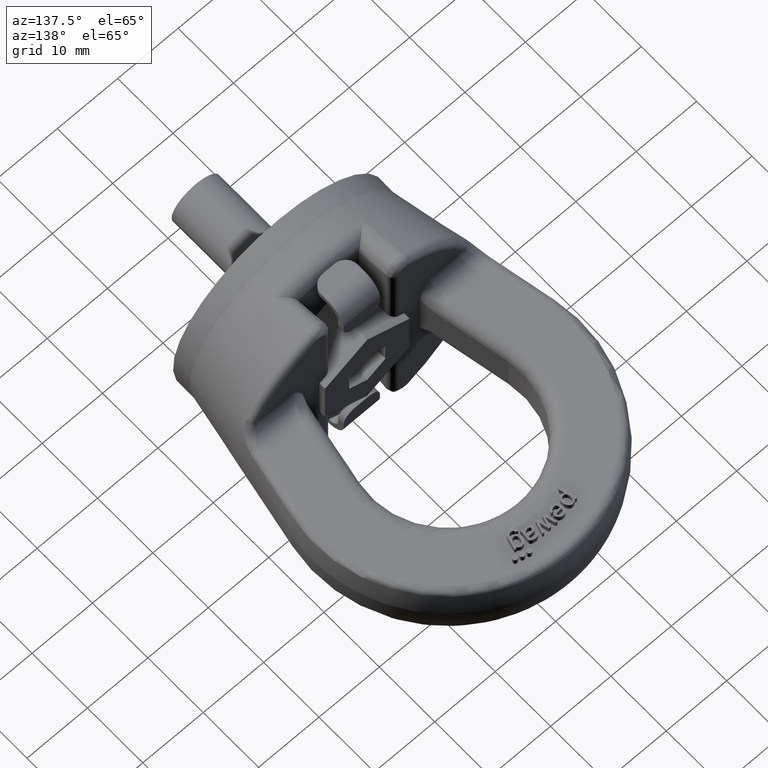
[diagram: clean part render]
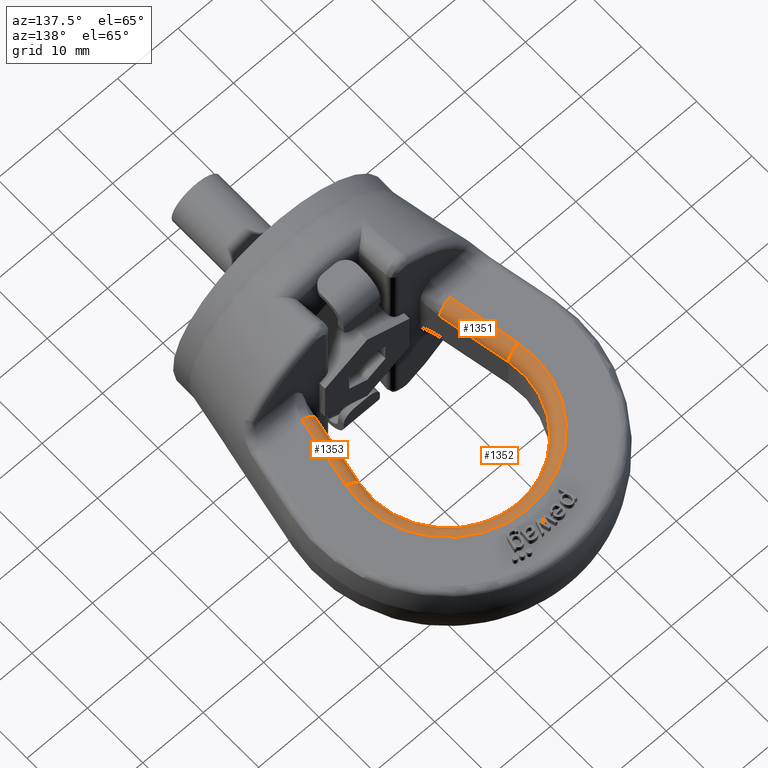
[diagram: same view with one multi-face feature highlighted, each face labeled with its STEP entity id]
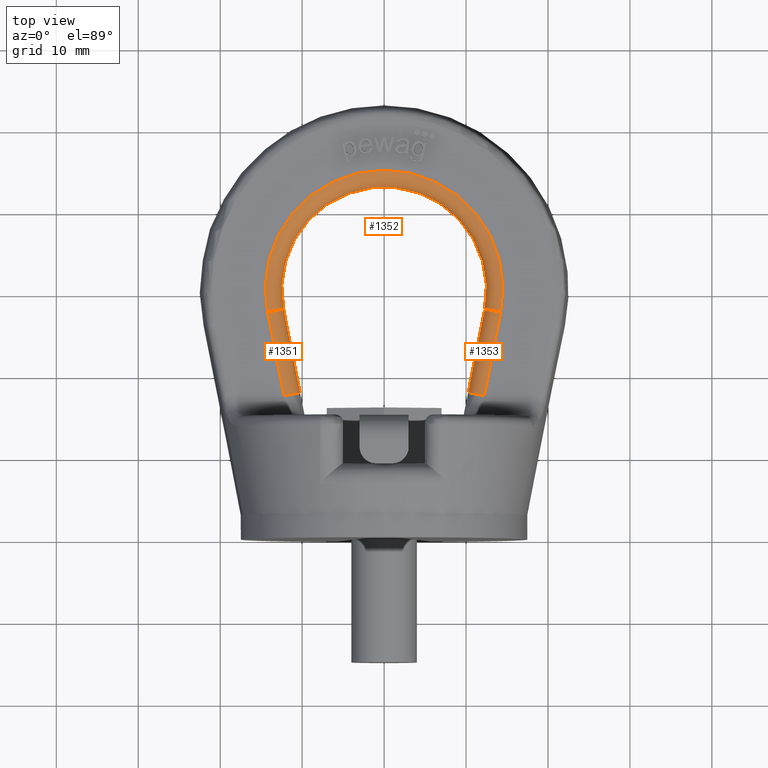
[diagram: same view with one multi-face feature highlighted, each face labeled with its STEP entity id]
A machine part, auxiliary view. The highlighted faces form ONE feature: a constant-radius fillet chain: 3 tangent blend faces with common blend radius 2 mm. The faces share edges in the B-rep.
A second angle (top view) of the same feature is appended — it is thin or edge-on in the first view.
Their STEP definitions:
[1] entity #1352 (Torus):
#1018=TOROIDAL_SURFACE('',#5198,14.5,2.);
#1128=FACE_OUTER_BOUND('',#1868,.T.);
#1352=ADVANCED_FACE('',(#1128),#1018,.T.);
#1669=CIRCLE('',#5120,14.5);
#1687=CIRCLE('',#5147,12.5);
#1703=CIRCLE('',#5195,2.);
#1704=CIRCLE('',#5197,2.);
#1868=EDGE_LOOP('',(#2976,#2977,#2978,#2979));
#2976=ORIENTED_EDGE('',*,*,#4447,.F.);
#2977=ORIENTED_EDGE('',*,*,#4396,.F.);
#2978=ORIENTED_EDGE('',*,*,#4448,.T.);
#2979=ORIENTED_EDGE('',*,*,#4296,.F.);
#3908=VERTEX_POINT('',#6399);
#3909=VERTEX_POINT('',#6400);
#4004=VERTEX_POINT('',#6897);
#4005=VERTEX_POINT('',#6899);
#4296=EDGE_CURVE('',#3908,#3909,#1669,.T.);
#4396=EDGE_CURVE('',#4004,#4005,#1687,.T.);
#4447=EDGE_CURVE('',#4005,#3908,#1703,.T.);
#4448=EDGE_CURVE('',#4004,#3909,#1704,.T.);
#5120=AXIS2_PLACEMENT_3D('',#6398,#5406,#5407);
#5147=AXIS2_PLACEMENT_3D('',#6898,#5508,#5509);
#5195=AXIS2_PLACEMENT_3D('',#7240,#5625,#5626);
#5197=AXIS2_PLACEMENT_3D('',#7242,#5629,#5630);
#5198=AXIS2_PLACEMENT_3D('',#7243,#5631,#5632);
#5406=DIRECTION('',(0.,-1.26490253456642E-16,-1.));
#5407=DIRECTION('',(0.,1.,-1.19636101791504E-16));
#5508=DIRECTION('',(0.,1.26490253456642E-16,1.));
#5509=DIRECTION('',(0.,1.,-1.38777878078145E-16));
#5625=DIRECTION('',(0.193894894562374,-0.981022308544839,0.));
#5626=DIRECTION('',(-0.981022308544839,-0.193894894562374,0.));
#5629=DIRECTION('',(0.193894894562376,0.981022308544839,0.));
#5630=DIRECTION('',(0.981022308544839,-0.193894894562376,0.));
#5631=DIRECTION('',(0.,-1.26490253456642E-16,-1.));
#5632=DIRECTION('',(0.,1.,-1.31418445149758E-16));
#6398=CARTESIAN_POINT('',(0.,30.5,5.));
#6399=CARTESIAN_POINT('',(-14.2248234739002,27.6885240288456,5.));
#6400=CARTESIAN_POINT('',(14.2248234739002,27.6885240288456,5.));
#6897=CARTESIAN_POINT('',(12.2627788568105,28.0763138179703,3.));
#6898=CARTESIAN_POINT('',(0.,30.5,3.));
#6899=CARTESIAN_POINT('',(-12.2627788568105,28.0763138179703,3.00000000000001));
#7240=CARTESIAN_POINT('',(-14.2248234739002,27.6885240288456,3.));
#7242=CARTESIAN_POINT('',(14.2248234739002,27.6885240288456,3.));
#7243=CARTESIAN_POINT('',(0.,30.5,3.));
[2] entity #1353 (Cylinder):
#1064=CYLINDRICAL_SURFACE('',#5200,2.);
#1129=FACE_OUTER_BOUND('',#1869,.T.);
#1353=ADVANCED_FACE('',(#1129),#1064,.T.);
#1704=CIRCLE('',#5197,2.);
#1705=CIRCLE('',#5199,2.);
#1869=EDGE_LOOP('',(#2980,#2981,#2982,#2983));
#2102=LINE('',#6401,#2382);
#2153=LINE('',#6913,#2433);
#2382=VECTOR('',#5408,1.);
#2433=VECTOR('',#5525,1.);
#2980=ORIENTED_EDGE('',*,*,#4448,.F.);
#2981=ORIENTED_EDGE('',*,*,#4404,.F.);
#2982=ORIENTED_EDGE('',*,*,#4449,.F.);
#2983=ORIENTED_EDGE('',*,*,#4297,.F.);
#3909=VERTEX_POINT('',#6400);
#3910=VERTEX_POINT('',#6402);
#4004=VERTEX_POINT('',#6897);
#4009=VERTEX_POINT('',#6912);
#4297=EDGE_CURVE('',#3909,#3910,#2102,.T.);
#4404=EDGE_CURVE('',#4009,#4004,#2153,.T.);
#4448=EDGE_CURVE('',#4004,#3909,#1704,.T.);
#4449=EDGE_CURVE('',#3910,#4009,#1705,.T.);
#5197=AXIS2_PLACEMENT_3D('',#7242,#5629,#5630);
#5199=AXIS2_PLACEMENT_3D('',#7244,#5633,#5634);
#5200=AXIS2_PLACEMENT_3D('',#7245,#5635,#5636);
#5408=DIRECTION('',(-0.193894894562375,-0.981022308544839,1.24089760454457E-16));
#5525=DIRECTION('',(0.193894894562375,0.981022308544839,-1.24089760454457E-16));
#5629=DIRECTION('',(0.193894894562376,0.981022308544839,0.));
#5630=DIRECTION('',(0.981022308544839,-0.193894894562376,0.));
#5633=DIRECTION('',(-0.193894894562375,-0.981022308544839,0.));
#5634=DIRECTION('',(0.98102230854484,-0.193894894562376,0.));
#5635=DIRECTION('',(0.193894894562375,0.981022308544839,-1.24089760454457E-16));
#5636=DIRECTION('',(-0.981022308544839,0.193894894562376,0.));
#6400=CARTESIAN_POINT('',(14.2248234739002,27.6885240288456,5.));
#6401=CARTESIAN_POINT('',(12.1344599472687,17.1122102108752,5.00000000000001));
#6402=CARTESIAN_POINT('',(12.2111049528101,17.5,5.00000000000001));
#6897=CARTESIAN_POINT('',(12.2627788568105,28.0763138179703,3.));
#6912=CARTESIAN_POINT('',(10.2490603357205,17.8877897891247,3.00000000000001));
#6913=CARTESIAN_POINT('',(12.2627788568105,28.0763138179703,3.00000000000001));
#7242=CARTESIAN_POINT('',(14.2248234739002,27.6885240288456,3.));
#7244=CARTESIAN_POINT('',(12.2111049528101,17.5,3.00000000000001));
#7245=CARTESIAN_POINT('',(22.0986033851369,67.5263638179203,3.));
[3] entity #1351 (Cylinder):
#1063=CYLINDRICAL_SURFACE('',#5196,2.);
#1127=FACE_OUTER_BOUND('',#1867,.T.);
#1351=ADVANCED_FACE('',(#1127),#1063,.T.);
#1702=CIRCLE('',#5194,2.);
#1703=CIRCLE('',#5195,2.);
#1867=EDGE_LOOP('',(#2972,#2973,#2974,#2975));
#2105=LINE('',#6419,#2385);
#2151=LINE('',#6904,#2431);
#2385=VECTOR('',#5413,1.);
#2431=VECTOR('',#5515,1.);
#2972=ORIENTED_EDGE('',*,*,#4446,.F.);
#2973=ORIENTED_EDGE('',*,*,#4399,.F.);
#2974=ORIENTED_EDGE('',*,*,#4447,.T.);
#2975=ORIENTED_EDGE('',*,*,#4303,.F.);
#3908=VERTEX_POINT('',#6399);
#3915=VERTEX_POINT('',#6418);
#4005=VERTEX_POINT('',#6899);
#4007=VERTEX_POINT('',#6905);
#4303=EDGE_CURVE('',#3915,#3908,#2105,.T.);
#4399=EDGE_CURVE('',#4005,#4007,#2151,.T.);
#4446=EDGE_CURVE('',#4007,#3915,#1702,.T.);
#4447=EDGE_CURVE('',#4005,#3908,#1703,.T.);
#5194=AXIS2_PLACEMENT_3D('',#7221,#5623,#5624);
#5195=AXIS2_PLACEMENT_3D('',#7240,#5625,#5626);
#5196=AXIS2_PLACEMENT_3D('',#7241,#5627,#5628);
#5413=DIRECTION('',(-0.193894894562375,0.981022308544839,-1.24089760454457E-16));
#5515=DIRECTION('',(0.193894894562375,-0.981022308544839,1.24089760454457E-16));
#5623=DIRECTION('',(0.193894894562376,-0.981022308544839,0.));
#5624=DIRECTION('',(-0.981022308544839,-0.193894894562376,0.));
#5625=DIRECTION('',(0.193894894562374,-0.981022308544839,0.));
#5626=DIRECTION('',(-0.981022308544839,-0.193894894562374,0.));
#5627=DIRECTION('',(0.193894894562375,-0.981022308544839,1.24089760454457E-16));
#5628=DIRECTION('',(0.981022308544839,0.193894894562376,0.));
#6399=CARTESIAN_POINT('',(-14.2248234739002,27.6885240288456,5.));
#6418=CARTESIAN_POINT('',(-12.2111049528101,17.5,5.00000000000001));
#6419=CARTESIAN_POINT('',(-14.2248234739002,27.6885240288456,5.));
#6899=CARTESIAN_POINT('',(-12.2627788568105,28.0763138179703,3.00000000000001));
#6904=CARTESIAN_POINT('',(-10.172415330179,17.5,3.00000000000001));
#6905=CARTESIAN_POINT('',(-10.2490603357205,17.8877897891247,3.00000000000001));
#7221=CARTESIAN_POINT('',(-12.2111049528101,17.5,3.00000000000001));
#7240=CARTESIAN_POINT('',(-14.2248234739002,27.6885240288456,3.));
#7241=CARTESIAN_POINT('',(-18.715032672775,50.4069942808428,3.));